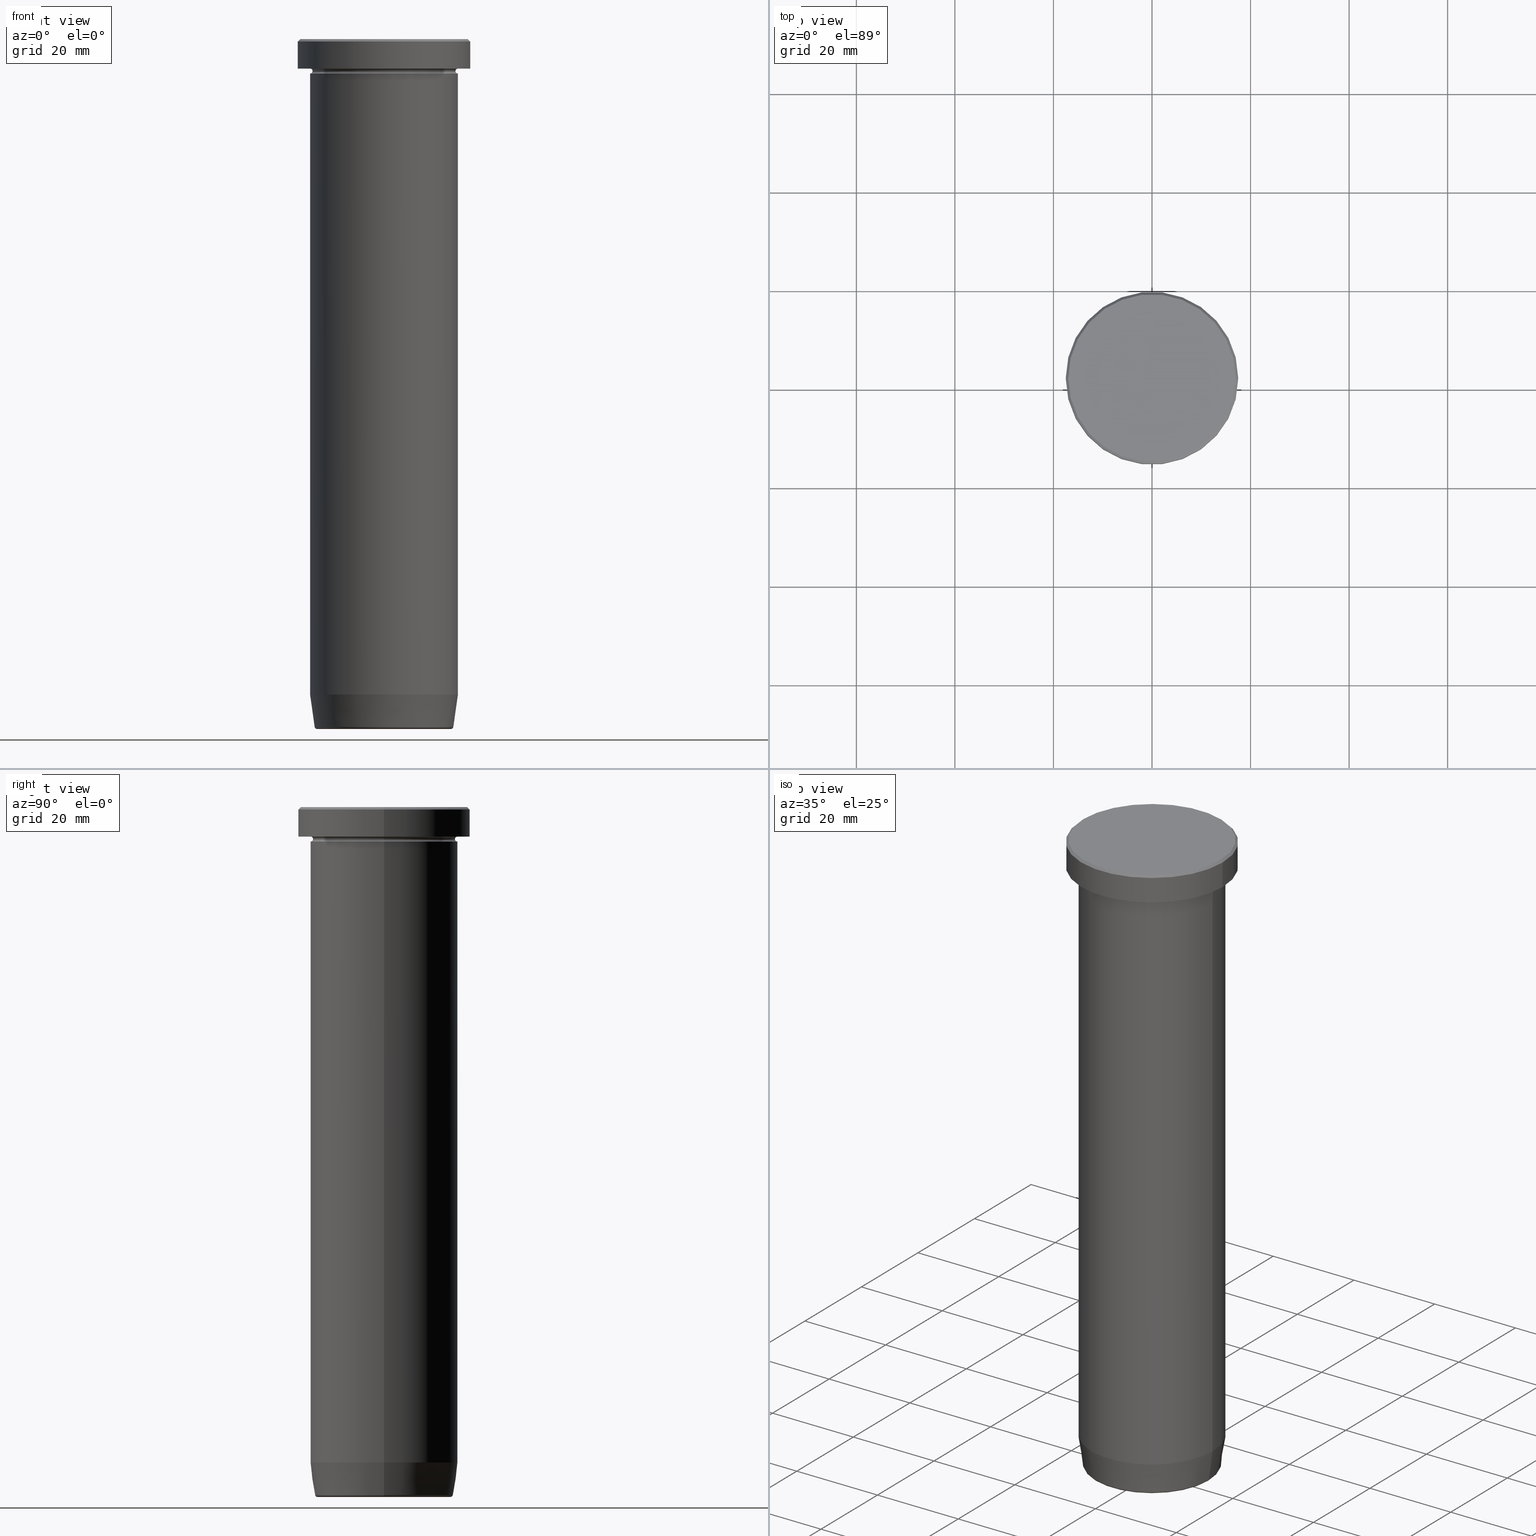
[diagram: canonical four-view strip — front | top / right | iso, engineering-drawing reading convention]
A machine part, canonical four-view strip (front | top / right | iso — engineering-drawing reading convention). The complete STEP part file that produces these views, byte-faithful:
ISO-10303-21;
HEADER;
FILE_DESCRIPTION (( 'STEP AP203' ),
    '1' );
FILE_NAME ('a6e9.STEP',
    '2024-01-02T17:50:50',
    ( '' ),
    ( '' ),
    'SwSTEP 2.0',
    'SolidWorks 2019',
    '' );
FILE_SCHEMA (( 'CONFIG_CONTROL_DESIGN' ));
ENDSEC;

DATA;
#1 = CARTESIAN_POINT ( 'NONE',  ( -15.00000000000000000, 1.836970198721029589E-15, -36.00000000000000000 ) ) ;
#2 =( LENGTH_UNIT ( ) NAMED_UNIT ( * ) SI_UNIT ( .MILLI., .METRE. ) );
#3 = ADVANCED_FACE ( 'NONE', ( #208 ), #386, .F. ) ;
#4 = DIRECTION ( 'NONE',  ( -1.000000000000000000, -1.224646799147349509E-16, 0.000000000000000000 ) ) ;
#5 = AXIS2_PLACEMENT_3D ( 'NONE', #526, #516, #239 ) ;
#6 = DIRECTION ( 'NONE',  ( 0.000000000000000000, 0.000000000000000000, -1.000000000000000000 ) ) ;
#7 = DIRECTION ( 'NONE',  ( 1.000000000000000000, 0.000000000000000000, 0.000000000000000000 ) ) ;
#8 = CYLINDRICAL_SURFACE ( 'NONE', #301, 17.50000000000000000 ) ;
#9 = ADVANCED_FACE ( 'NONE', ( #390 ), #397, .F. ) ;
#10 = VERTEX_POINT ( 'NONE', #346 ) ;
#11 = ORGANIZATION ( 'NEUR�EN�', 'NEUR�EN�', '' ) ;
#12 = DIRECTION ( 'NONE',  ( 1.000000000000000000, 0.000000000000000000, 0.000000000000000000 ) ) ;
#13 = AXIS2_PLACEMENT_3D ( 'NONE', #485, #22, #215 ) ;
#14 = ORIENTED_EDGE ( 'NONE', *, *, #358, .F. ) ;
#15 = VERTEX_POINT ( 'NONE', #442 ) ;
#16 = DIRECTION ( 'NONE',  ( 1.000000000000000000, 0.000000000000000000, 0.000000000000000000 ) ) ;
#17 = ORIENTED_EDGE ( 'NONE', *, *, #353, .T. ) ;
#18 = ADVANCED_FACE ( 'NONE', ( #73 ), #162, .F. ) ;
#19 = CARTESIAN_POINT ( 'NONE',  ( 0.000000000000000000, 0.000000000000000000, 0.000000000000000000 ) ) ;
#20 = DIRECTION ( 'NONE',  ( -0.000000000000000000, -0.000000000000000000, 1.000000000000000000 ) ) ;
#21 = APPROVAL_PERSON_ORGANIZATION ( #316, #325, #513 ) ;
#22 = DIRECTION ( 'NONE',  ( 0.000000000000000000, 0.000000000000000000, -1.000000000000000000 ) ) ;
#23 = AXIS2_PLACEMENT_3D ( 'NONE', #335, #247, #373 ) ;
#24 = VERTEX_POINT ( 'NONE', #542 ) ;
#25 = CARTESIAN_POINT ( 'NONE',  ( 0.000000000000000000, 0.000000000000000000, -132.9999999999999716 ) ) ;
#26 = AXIS2_PLACEMENT_3D ( 'NONE', #583, #97, #211 ) ;
#27 = ADVANCED_FACE ( 'NONE', ( #580 ), #141, .T. ) ;
#28 = EDGE_LOOP ( 'NONE', ( #537, #592, #438, #495 ) ) ;
#29 = DIRECTION ( 'NONE',  ( -0.000000000000000000, -0.000000000000000000, 1.000000000000000000 ) ) ;
#30 = ORIENTED_EDGE ( 'NONE', *, *, #203, .F. ) ;
#31 = CC_DESIGN_APPROVAL ( #161, ( #262 ) ) ;
#32 = CIRCLE ( 'NONE', #192, 15.00000000000000000 ) ;
#33 = COORDINATED_UNIVERSAL_TIME_OFFSET ( 1, 0, .AHEAD. ) ;
#34 = VERTEX_POINT ( 'NONE', #250 ) ;
#35 =( NAMED_UNIT ( * ) SI_UNIT ( $, .STERADIAN. ) SOLID_ANGLE_UNIT ( ) );
#36 = EDGE_CURVE ( 'NONE', #157, #403, #260, .T. ) ;
#37 = DIRECTION ( 'NONE',  ( 1.000000000000000000, 0.000000000000000000, 0.000000000000000000 ) ) ;
#38 = ORIENTED_EDGE ( 'NONE', *, *, #236, .T. ) ;
#39 = DATE_AND_TIME ( #360, #255 ) ;
#40 = FACE_OUTER_BOUND ( 'NONE', #202, .T. ) ;
#41 = CC_DESIGN_SECURITY_CLASSIFICATION ( #370, ( #509 ) ) ;
#42 = AXIS2_PLACEMENT_3D ( 'NONE', #249, #155, #195 ) ;
#43 = LOCAL_TIME ( 18, 50, 50.00000000000000000, #44 ) ;
#44 = COORDINATED_UNIVERSAL_TIME_OFFSET ( 1, 0, .AHEAD. ) ;
#45 = DIRECTION ( 'NONE',  ( -0.000000000000000000, -0.000000000000000000, 1.000000000000000000 ) ) ;
#46 = APPROVAL_ROLE ( '' ) ;
#47 = CARTESIAN_POINT ( 'NONE',  ( 0.000000000000000000, 0.000000000000000000, 0.000000000000000000 ) ) ;
#48 = CC_DESIGN_PERSON_AND_ORGANIZATION_ASSIGNMENT ( #510, #140, ( #262 ) ) ;
#49 = CYLINDRICAL_SURFACE ( 'NONE', #127, 15.00000000000000000 ) ;
#50 = ORIENTED_EDGE ( 'NONE', *, *, #371, .T. ) ;
#51 = CIRCLE ( 'NONE', #246, 15.00000000000000000 ) ;
#52 = DIRECTION ( 'NONE',  ( 0.000000000000000000, -1.000000000000000000, 0.000000000000000000 ) ) ;
#53 = DIRECTION ( 'NONE',  ( -0.000000000000000000, -0.000000000000000000, 1.000000000000000000 ) ) ;
#54 = DIRECTION ( 'NONE',  ( 1.000000000000000000, 0.000000000000000000, 0.000000000000000000 ) ) ;
#55 = ADVANCED_FACE ( 'NONE', ( #342 ), #503, .F. ) ;
#56 = DIRECTION ( 'NONE',  ( 1.000000000000000000, 0.000000000000000000, 0.000000000000000000 ) ) ;
#57 = ADVANCED_BREP_SHAPE_REPRESENTATION ( 'a6e9', ( #152, #543, #93 ), #181 ) ;
#58 = DIRECTION ( 'NONE',  ( 0.000000000000000000, 0.000000000000000000, -1.000000000000000000 ) ) ;
#59 = VECTOR ( 'NONE', #372, 1000.000000000000000 ) ;
#60 = EDGE_CURVE ( 'NONE', #67, #15, #364, .T. ) ;
#61 = ORIENTED_EDGE ( 'NONE', *, *, #515, .F. ) ;
#62 = DIRECTION ( 'NONE',  ( 1.000000000000000000, 0.000000000000000000, 0.000000000000000000 ) ) ;
#63 = ORIENTED_EDGE ( 'NONE', *, *, #420, .T. ) ;
#64 = ORIENTED_EDGE ( 'NONE', *, *, #253, .F. ) ;
#65 = CARTESIAN_POINT ( 'NONE',  ( 0.000000000000000000, 0.000000000000000000, 0.000000000000000000 ) ) ;
#66 = CARTESIAN_POINT ( 'NONE',  ( 0.000000000000000000, 0.000000000000000000, -36.00000000000000000 ) ) ;
#67 = VERTEX_POINT ( 'NONE', #552 ) ;
#68 = FACE_OUTER_BOUND ( 'NONE', #207, .T. ) ;
#69 = EDGE_LOOP ( 'NONE', ( #546, #108, #298, #491 ) ) ;
#70 = AXIS2_PLACEMENT_3D ( 'NONE', #496, #77, #79 ) ;
#71 = CARTESIAN_POINT ( 'NONE',  ( 0.000000000000000000, 0.000000000000000000, -6.499999999999999112 ) ) ;
#72 = AXIS2_PLACEMENT_3D ( 'NONE', #545, #193, #554 ) ;
#73 = FACE_OUTER_BOUND ( 'NONE', #139, .T. ) ;
#74 = VECTOR ( 'NONE', #138, 1000.000000000000000 ) ;
#75 = TOROIDAL_SURFACE ( 'NONE', #379, 15.00000000000000000, 0.5000000000000000000 ) ;
#76 = EDGE_LOOP ( 'NONE', ( #344, #38 ) ) ;
#77 = DIRECTION ( 'NONE',  ( -0.000000000000000000, -0.000000000000000000, 1.000000000000000000 ) ) ;
#78 = LINE ( 'NONE', #259, #566 ) ;
#79 = DIRECTION ( 'NONE',  ( -1.000000000000000000, 0.000000000000000000, 0.000000000000000000 ) ) ;
#80 = ORIENTED_EDGE ( 'NONE', *, *, #578, .F. ) ;
#81 = AXIS2_PLACEMENT_3D ( 'NONE', #133, #308, #343 ) ;
#82 = AXIS2_PLACEMENT_3D ( 'NONE', #277, #470, #280 ) ;
#83 = EDGE_CURVE ( 'NONE', #34, #366, #493, .T. ) ;
#84 =( NAMED_UNIT ( * ) PLANE_ANGLE_UNIT ( ) SI_UNIT ( $, .RADIAN. ) );
#85 = DIRECTION ( 'NONE',  ( -0.000000000000000000, -0.000000000000000000, 1.000000000000000000 ) ) ;
#86 = ORIENTED_EDGE ( 'NONE', *, *, #596, .F. ) ;
#87 = APPLICATION_PROTOCOL_DEFINITION ( 'international standard', 'config_control_design', 1994, #511 ) ;
#88 = FACE_OUTER_BOUND ( 'NONE', #234, .T. ) ;
#89 = AXIS2_PLACEMENT_3D ( 'NONE', #432, #375, #54 ) ;
#90 = CYLINDRICAL_SURFACE ( 'NONE', #72, 15.00000000000000000 ) ;
#91 = APPROVAL_STATUS ( 'not_yet_approved' ) ;
#92 = CARTESIAN_POINT ( 'NONE',  ( 0.000000000000000000, 0.000000000000000000, 0.000000000000000000 ) ) ;
#93 = AXIS2_PLACEMENT_3D ( 'NONE', #144, #556, #100 ) ;
#94 = AXIS2_PLACEMENT_3D ( 'NONE', #160, #338, #116 ) ;
#95 = CARTESIAN_POINT ( 'NONE',  ( 0.000000000000000000, 0.000000000000000000, -6.499999999999999112 ) ) ;
#96 = DATE_TIME_ROLE ( 'classification_date' ) ;
#97 = DIRECTION ( 'NONE',  ( 0.000000000000000000, -0.000000000000000000, 1.000000000000000000 ) ) ;
#98 = DIRECTION ( 'NONE',  ( -0.000000000000000000, -0.000000000000000000, 1.000000000000000000 ) ) ;
#99 = ADVANCED_FACE ( 'NONE', ( #567 ), #241, .T. ) ;
#100 = DIRECTION ( 'NONE',  ( 1.000000000000000000, 0.000000000000000000, 0.000000000000000000 ) ) ;
#101 = CARTESIAN_POINT ( 'NONE',  ( 0.000000000000000000, 0.000000000000000000, 0.000000000000000000 ) ) ;
#102 = CARTESIAN_POINT ( 'NONE',  ( 15.00000000000000000, 0.000000000000000000, -6.499999999999999112 ) ) ;
#103 = ORIENTED_EDGE ( 'NONE', *, *, #134, .T. ) ;
#104 = CC_DESIGN_APPROVAL ( #220, ( #370 ) ) ;
#105 = ADVANCED_FACE ( 'NONE', ( #143 ), #90, .T. ) ;
#106 = AXIS2_PLACEMENT_3D ( 'NONE', #334, #523, #428 ) ;
#107 = DIRECTION ( 'NONE',  ( 0.1391731009600661317, 0.000000000000000000, 0.9902680687415702510 ) ) ;
#108 = ORIENTED_EDGE ( 'NONE', *, *, #253, .T. ) ;
#109 = FACE_OUTER_BOUND ( 'NONE', #129, .T. ) ;
#110 = CLOSED_SHELL ( 'NONE', ( #472, #55, #3, #154, #268, #185, #409, #145, #429, #243, #212, #456, #589 ) ) ;
#111 = ORIENTED_EDGE ( 'NONE', *, *, #452, .T. ) ;
#112 = ORIENTED_EDGE ( 'NONE', *, *, #384, .F. ) ;
#113 = DIRECTION ( 'NONE',  ( -1.000000000000000000, 1.224646799147349509E-16, 0.000000000000000000 ) ) ;
#114 = EDGE_CURVE ( 'NONE', #15, #572, #189, .T. ) ;
#115 = ORIENTED_EDGE ( 'NONE', *, *, #578, .T. ) ;
#116 = DIRECTION ( 'NONE',  ( 1.000000000000000000, 0.000000000000000000, 0.000000000000000000 ) ) ;
#117 = CIRCLE ( 'NONE', #106, 0.5000000000000004441 ) ;
#118 = PRODUCT_RELATED_PRODUCT_CATEGORY ( 'detail', '', ( #318 ) ) ;
#119 = ORIENTED_EDGE ( 'NONE', *, *, #339, .F. ) ;
#120 = DIRECTION ( 'NONE',  ( -0.000000000000000000, -0.000000000000000000, 1.000000000000000000 ) ) ;
#121 = EDGE_LOOP ( 'NONE', ( #50, #410 ) ) ;
#122 = DIRECTION ( 'NONE',  ( 0.000000000000000000, 0.000000000000000000, -1.000000000000000000 ) ) ;
#123 = DIRECTION ( 'NONE',  ( -0.000000000000000000, -0.000000000000000000, 1.000000000000000000 ) ) ;
#124 = ORIENTED_EDGE ( 'NONE', *, *, #296, .F. ) ;
#125 = ADVANCED_FACE ( 'NONE', ( #310 ), #558, .T. ) ;
#126 = FACE_OUTER_BOUND ( 'NONE', #395, .T. ) ;
#127 = AXIS2_PLACEMENT_3D ( 'NONE', #92, #467, #235 ) ;
#128 = AXIS2_PLACEMENT_3D ( 'NONE', #25, #120, #354 ) ;
#129 = EDGE_LOOP ( 'NONE', ( #256, #593, #422, #119 ) ) ;
#130 = DIRECTION ( 'NONE',  ( 0.000000000000000000, 0.000000000000000000, -1.000000000000000000 ) ) ;
#131 = EDGE_LOOP ( 'NONE', ( #522, #14 ) ) ;
#132 = ORIENTED_EDGE ( 'NONE', *, *, #36, .F. ) ;
#133 = CARTESIAN_POINT ( 'NONE',  ( 0.000000000000000000, 0.000000000000000000, -6.499999999999999112 ) ) ;
#134 = EDGE_CURVE ( 'NONE', #380, #245, #51, .T. ) ;
#135 = DIRECTION ( 'NONE',  ( -0.000000000000000000, -0.000000000000000000, 1.000000000000000000 ) ) ;
#136 = AXIS2_PLACEMENT_3D ( 'NONE', #444, #385, #7 ) ;
#137 = APPROVAL_STATUS ( 'not_yet_approved' ) ;
#138 = DIRECTION ( 'NONE',  ( 0.7071067811865426878, 8.659560562354874926E-17, -0.7071067811865524577 ) ) ;
#139 = EDGE_LOOP ( 'NONE', ( #103, #383 ) ) ;
#140 = PERSON_AND_ORGANIZATION_ROLE ( 'creator' ) ;
#141 = CONICAL_SURFACE ( 'NONE', #486, 14.01621415708325280, 0.1396263401595470577 ) ;
#142 = CARTESIAN_POINT ( 'NONE',  ( 0.000000000000000000, 0.000000000000000000, 0.000000000000000000 ) ) ;
#143 = FACE_OUTER_BOUND ( 'NONE', #286, .T. ) ;
#144 = CARTESIAN_POINT ( 'NONE',  ( 0.000000000000000000, 0.000000000000000000, 0.000000000000000000 ) ) ;
#145 = ADVANCED_FACE ( 'NONE', ( #40 ), #227, .T. ) ;
#146 = CARTESIAN_POINT ( 'NONE',  ( 0.000000000000000000, 0.000000000000000000, -36.00000000000000000 ) ) ;
#147 = AXIS2_PLACEMENT_3D ( 'NONE', #488, #217, #404 ) ;
#148 = CIRCLE ( 'NONE', #174, 0.5000000000000004441 ) ;
#149 = DIRECTION ( 'NONE',  ( 0.000000000000000000, 0.000000000000000000, -1.000000000000000000 ) ) ;
#150 = PERSON_AND_ORGANIZATION ( #276, #11 ) ;
#151 = CARTESIAN_POINT ( 'NONE',  ( 0.000000000000000000, 15.00000000000000000, -36.00000000000000000 ) ) ;
#152 = MANIFOLD_SOLID_BREP ( 'Zkosen�1', #110 ) ;
#153 = DIRECTION ( 'NONE',  ( -0.000000000000000000, -0.000000000000000000, 1.000000000000000000 ) ) ;
#154 = ADVANCED_FACE ( 'NONE', ( #499 ), #49, .T. ) ;
#155 = DIRECTION ( 'NONE',  ( 0.000000000000000000, -0.000000000000000000, 1.000000000000000000 ) ) ;
#156 = CC_DESIGN_DATE_AND_TIME_ASSIGNMENT ( #180, #417, ( #262 ) ) ;
#157 = VERTEX_POINT ( 'NONE', #320 ) ;
#158 = CARTESIAN_POINT ( 'NONE',  ( 15.00000000000000000, 0.000000000000000000, -6.999999999999999112 ) ) ;
#159 = CARTESIAN_POINT ( 'NONE',  ( -15.00000000000000000, 1.836970198721029589E-15, 0.000000000000000000 ) ) ;
#160 = CARTESIAN_POINT ( 'NONE',  ( 0.000000000000000000, 0.000000000000000000, -139.4999999999999716 ) ) ;
#161 = APPROVAL ( #137, 'NEUR�EN�' ) ;
#162 = PLANE ( 'NONE',  #401 ) ;
#163 = DIRECTION ( 'NONE',  ( 0.000000000000000000, 0.000000000000000000, -1.000000000000000000 ) ) ;
#164 = AXIS2_PLACEMENT_3D ( 'NONE', #361, #549, #365 ) ;
#165 = ORIENTED_EDGE ( 'NONE', *, *, #288, .T. ) ;
#166 = ORIENTED_EDGE ( 'NONE', *, *, #570, .T. ) ;
#167 = LINE ( 'NONE', #590, #555 ) ;
#168 = EDGE_CURVE ( 'NONE', #34, #157, #460, .T. ) ;
#169 = AXIS2_PLACEMENT_3D ( 'NONE', #445, #393, #399 ) ;
#170 = DIRECTION ( 'NONE',  ( 1.000000000000000000, 0.000000000000000000, 0.000000000000000000 ) ) ;
#171 = ORIENTED_EDGE ( 'NONE', *, *, #550, .F. ) ;
#172 = CIRCLE ( 'NONE', #283, 15.00000000000000000 ) ;
#173 = DIRECTION ( 'NONE',  ( -1.000000000000000000, 0.000000000000000000, -0.000000000000000000 ) ) ;
#174 = AXIS2_PLACEMENT_3D ( 'NONE', #102, #52, #58 ) ;
#175 = VERTEX_POINT ( 'NONE', #412 ) ;
#176 = DIRECTION ( 'NONE',  ( -0.000000000000000000, -0.000000000000000000, 1.000000000000000000 ) ) ;
#177 = EDGE_CURVE ( 'NONE', #572, #380, #423, .T. ) ;
#178 = EDGE_LOOP ( 'NONE', ( #30, #216, #453, #80 ) ) ;
#179 = VERTEX_POINT ( 'NONE', #508 ) ;
#180 = DATE_AND_TIME ( #411, #424 ) ;
#181 =( GEOMETRIC_REPRESENTATION_CONTEXT ( 3 ) GLOBAL_UNCERTAINTY_ASSIGNED_CONTEXT ( ( #327 ) ) GLOBAL_UNIT_ASSIGNED_CONTEXT ( ( #2, #84, #35 ) ) REPRESENTATION_CONTEXT ( 'NONE', 'WORKASPACE' ) );
#182 = CARTESIAN_POINT ( 'NONE',  ( 0.000000000000000000, 0.000000000000000000, -6.499999999999999112 ) ) ;
#183 = CIRCLE ( 'NONE', #5, 0.5000000000000004441 ) ;
#184 = CARTESIAN_POINT ( 'NONE',  ( -15.00000000000000000, 1.836970198721029589E-15, -36.00000000000000000 ) ) ;
#185 = ADVANCED_FACE ( 'NONE', ( #514 ), #323, .T. ) ;
#186 = CALENDAR_DATE ( 2024, 2, 1 ) ;
#187 = CARTESIAN_POINT ( 'NONE',  ( -14.01621415708325280, 1.716491180363582438E-15, -139.9999999999999716 ) ) ;
#188 = CARTESIAN_POINT ( 'NONE',  ( -15.00000000000000000, 1.836970198721029589E-15, -6.999999999999999112 ) ) ;
#189 = CIRCLE ( 'NONE', #82, 15.00000000000000000 ) ;
#190 = MECHANICAL_CONTEXT ( 'NONE', #478, 'mechanical' ) ;
#191 = FACE_OUTER_BOUND ( 'NONE', #586, .T. ) ;
#192 = AXIS2_PLACEMENT_3D ( 'NONE', #529, #29, #534 ) ;
#193 = DIRECTION ( 'NONE',  ( -0.000000000000000000, -0.000000000000000000, 1.000000000000000000 ) ) ;
#194 = EDGE_CURVE ( 'NONE', #359, #497, #331, .T. ) ;
#195 = DIRECTION ( 'NONE',  ( 1.000000000000000000, 0.000000000000000000, 0.000000000000000000 ) ) ;
#196 = ORIENTED_EDGE ( 'NONE', *, *, #507, .T. ) ;
#197 = DIRECTION ( 'NONE',  ( -0.000000000000000000, -0.000000000000000000, 1.000000000000000000 ) ) ;
#198 = CONICAL_SURFACE ( 'NONE', #303, 17.00000000000000000, 0.7853981633974415066 ) ;
#199 = CIRCLE ( 'NONE', #597, 0.5000000000000004441 ) ;
#200 = CIRCLE ( 'NONE', #70, 14.07670482254592592 ) ;
#201 = CARTESIAN_POINT ( 'NONE',  ( -17.50000000000000000, 2.143131898507868248E-15, -0.5000000000000073275 ) ) ;
#202 = EDGE_LOOP ( 'NONE', ( #61, #431, #252, #461 ) ) ;
#203 = EDGE_CURVE ( 'NONE', #497, #175, #427, .T. ) ;
#204 = DIRECTION ( 'NONE',  ( -1.000000000000000000, 0.000000000000000000, 0.000000000000000000 ) ) ;
#205 = DIRECTION ( 'NONE',  ( -0.000000000000000000, -0.000000000000000000, 1.000000000000000000 ) ) ;
#206 = DIRECTION ( 'NONE',  ( 1.000000000000000000, 0.000000000000000000, 0.000000000000000000 ) ) ;
#207 = EDGE_LOOP ( 'NONE', ( #86, #471, #112, #563 ) ) ;
#208 = FACE_OUTER_BOUND ( 'NONE', #69, .T. ) ;
#209 = FACE_OUTER_BOUND ( 'NONE', #178, .T. ) ;
#210 = CIRCLE ( 'NONE', #415, 0.5000000000000004441 ) ;
#211 = DIRECTION ( 'NONE',  ( 1.000000000000000000, 0.000000000000000000, 0.000000000000000000 ) ) ;
#212 = ADVANCED_FACE ( 'NONE', ( #191 ), #437, .F. ) ;
#213 = CARTESIAN_POINT ( 'NONE',  ( 0.000000000000000000, 0.000000000000000000, -6.499999999999999112 ) ) ;
#214 = CARTESIAN_POINT ( 'NONE',  ( 0.000000000000000000, 0.000000000000000000, -5.999999999999999112 ) ) ;
#215 = DIRECTION ( 'NONE',  ( -1.000000000000000000, 0.000000000000000000, 0.000000000000000000 ) ) ;
#216 = ORIENTED_EDGE ( 'NONE', *, *, #541, .T. ) ;
#217 = DIRECTION ( 'NONE',  ( -0.000000000000000000, -0.000000000000000000, 1.000000000000000000 ) ) ;
#218 = VERTEX_POINT ( 'NONE', #184 ) ;
#219 = CIRCLE ( 'NONE', #311, 14.07670482254592592 ) ;
#220 = APPROVAL ( #322, 'NEUR�EN�' ) ;
#221 = APPLICATION_PROTOCOL_DEFINITION ( 'international standard', 'config_control_design', 1994, #478 ) ;
#222 = ORIENTED_EDGE ( 'NONE', *, *, #312, .F. ) ;
#223 = ORIENTED_EDGE ( 'NONE', *, *, #60, .T. ) ;
#224 = DATE_AND_TIME ( #319, #448 ) ;
#225 = CARTESIAN_POINT ( 'NONE',  ( 17.50000000000000000, 0.000000000000000000, 0.000000000000000000 ) ) ;
#226 = CC_DESIGN_APPROVAL ( #325, ( #509 ) ) ;
#227 = CYLINDRICAL_SURFACE ( 'NONE', #321, 17.50000000000000000 ) ;
#228 = CIRCLE ( 'NONE', #480, 17.50000000000000000 ) ;
#229 = EDGE_CURVE ( 'NONE', #10, #157, #237, .T. ) ;
#230 = APPROVAL_PERSON_ORGANIZATION ( #506, #161, #46 ) ;
#231 = DIRECTION ( 'NONE',  ( -1.000000000000000000, 0.000000000000000000, 0.000000000000000000 ) ) ;
#232 = DIRECTION ( 'NONE',  ( 1.000000000000000000, 0.000000000000000000, 0.000000000000000000 ) ) ;
#233 = PERSON_AND_ORGANIZATION ( #276, #11 ) ;
#234 = EDGE_LOOP ( 'NONE', ( #387, #290, #405, #349 ) ) ;
#235 = DIRECTION ( 'NONE',  ( 1.000000000000000000, 0.000000000000000000, 0.000000000000000000 ) ) ;
#236 = EDGE_CURVE ( 'NONE', #350, #305, #238, .T. ) ;
#237 = LINE ( 'NONE', #425, #74 ) ;
#238 = CIRCLE ( 'NONE', #352, 13.58157078817513863 ) ;
#239 = DIRECTION ( 'NONE',  ( 0.000000000000000000, 0.000000000000000000, -1.000000000000000000 ) ) ;
#240 = CARTESIAN_POINT ( 'NONE',  ( 0.000000000000000000, 0.000000000000000000, -36.00000000000000000 ) ) ;
#241 = TOROIDAL_SURFACE ( 'NONE', #585, 13.58157078817513863, 0.5000000000000000000 ) ;
#242 = DIRECTION ( 'NONE',  ( 0.000000000000000000, 0.000000000000000000, -1.000000000000000000 ) ) ;
#243 = ADVANCED_FACE ( 'NONE', ( #88 ), #462, .T. ) ;
#244 = ORIENTED_EDGE ( 'NONE', *, *, #114, .F. ) ;
#245 = VERTEX_POINT ( 'NONE', #1 ) ;
#246 = AXIS2_PLACEMENT_3D ( 'NONE', #146, #269, #266 ) ;
#247 = DIRECTION ( 'NONE',  ( -0.000000000000000000, -0.000000000000000000, 1.000000000000000000 ) ) ;
#248 = ORIENTED_EDGE ( 'NONE', *, *, #229, .F. ) ;
#249 = CARTESIAN_POINT ( 'NONE',  ( 0.000000000000000000, 0.000000000000000000, 0.000000000000000000 ) ) ;
#250 = CARTESIAN_POINT ( 'NONE',  ( 17.50000000000000000, 0.000000000000000000, -5.999999999999999112 ) ) ;
#251 = VERTEX_POINT ( 'NONE', #188 ) ;
#252 = ORIENTED_EDGE ( 'NONE', *, *, #168, .T. ) ;
#253 = EDGE_CURVE ( 'NONE', #359, #251, #210, .T. ) ;
#254 = DIRECTION ( 'NONE',  ( -1.000000000000000000, 0.000000000000000000, 0.000000000000000000 ) ) ;
#255 = LOCAL_TIME ( 18, 50, 50.00000000000000000, #313 ) ;
#256 = ORIENTED_EDGE ( 'NONE', *, *, #236, .F. ) ;
#257 = DIRECTION ( 'NONE',  ( -0.000000000000000000, -0.000000000000000000, 1.000000000000000000 ) ) ;
#258 = DIRECTION ( 'NONE',  ( -0.000000000000000000, -0.000000000000000000, 1.000000000000000000 ) ) ;
#259 = CARTESIAN_POINT ( 'NONE',  ( -17.00000000000000000, 0.000000000000000000, 0.000000000000000000 ) ) ;
#260 = CIRCLE ( 'NONE', #169, 17.50000000000000000 ) ;
#261 = FACE_OUTER_BOUND ( 'NONE', #574, .T. ) ;
#262 = PRODUCT_DEFINITION ( 'NEZN�M�', '', #509, #275 ) ;
#263 = AXIS2_PLACEMENT_3D ( 'NONE', #587, #258, #170 ) ;
#264 = CARTESIAN_POINT ( 'NONE',  ( 0.000000000000000000, 0.000000000000000000, -36.00000000000000000 ) ) ;
#265 = AXIS2_PLACEMENT_3D ( 'NONE', #101, #85, #37 ) ;
#266 = DIRECTION ( 'NONE',  ( 1.000000000000000000, 0.000000000000000000, 0.000000000000000000 ) ) ;
#267 = COORDINATED_UNIVERSAL_TIME_OFFSET ( 1, 0, .AHEAD. ) ;
#268 = ADVANCED_FACE ( 'NONE', ( #473 ), #8, .T. ) ;
#269 = DIRECTION ( 'NONE',  ( -0.000000000000000000, -0.000000000000000000, 1.000000000000000000 ) ) ;
#270 = VERTEX_POINT ( 'NONE', #158 ) ;
#271 = PERSON_AND_ORGANIZATION ( #276, #11 ) ;
#272 = DIRECTION ( 'NONE',  ( -1.224646799147353207E-16, 1.000000000000000000, 0.000000000000000000 ) ) ;
#273 = CONICAL_SURFACE ( 'NONE', #13, 17.00000000000000000, 0.7853981633974415066 ) ;
#274 = APPROVAL_DATE_TIME ( #224, #161 ) ;
#275 = DESIGN_CONTEXT ( 'detailed design', #511, 'design' ) ;
#276 = PERSON ( 'NEUR�EN�', 'NEUR�EN�', 'NEUR�EN�', ('NEUR�EN�'), ('NEUR�EN�'), ('NEUR�EN�') ) ;
#277 = CARTESIAN_POINT ( 'NONE',  ( 0.000000000000000000, 0.000000000000000000, -132.9999999999999716 ) ) ;
#278 = EDGE_CURVE ( 'NONE', #245, #380, #547, .T. ) ;
#279 = PERSON_AND_ORGANIZATION_ROLE ( 'design_supplier' ) ;
#280 = DIRECTION ( 'NONE',  ( 1.000000000000000000, 0.000000000000000000, 0.000000000000000000 ) ) ;
#281 = SHAPE_DEFINITION_REPRESENTATION ( #329, #57 ) ;
#282 = LINE ( 'NONE', #159, #294 ) ;
#283 = AXIS2_PLACEMENT_3D ( 'NONE', #451, #355, #302 ) ;
#284 = CIRCLE ( 'NONE', #23, 15.00000000000000000 ) ;
#285 = CARTESIAN_POINT ( 'NONE',  ( -14.49999999999999822, 1.806354028742345802E-15, -6.499999999999999112 ) ) ;
#286 = EDGE_LOOP ( 'NONE', ( #396, #447, #504, #414 ) ) ;
#287 = CARTESIAN_POINT ( 'NONE',  ( 15.00000000000000000, 0.000000000000000000, -36.00000000000000000 ) ) ;
#288 = EDGE_CURVE ( 'NONE', #497, #270, #148, .T. ) ;
#289 = ORIENTED_EDGE ( 'NONE', *, *, #524, .F. ) ;
#290 = ORIENTED_EDGE ( 'NONE', *, *, #296, .T. ) ;
#291 = EDGE_LOOP ( 'NONE', ( #520, #63, #576, #484 ) ) ;
#292 = DIRECTION ( 'NONE',  ( 1.000000000000000000, 0.000000000000000000, 0.000000000000000000 ) ) ;
#293 = AXIS2_PLACEMENT_3D ( 'NONE', #264, #458, #348 ) ;
#294 = VECTOR ( 'NONE', #153, 1000.000000000000000 ) ;
#295 = CARTESIAN_POINT ( 'NONE',  ( 0.000000000000000000, 0.000000000000000000, -0.5000000000000073275 ) ) ;
#296 = EDGE_CURVE ( 'NONE', #218, #539, #284, .T. ) ;
#297 = CARTESIAN_POINT ( 'NONE',  ( 15.00000000000000000, 0.000000000000000000, -132.9999999999999716 ) ) ;
#298 = ORIENTED_EDGE ( 'NONE', *, *, #468, .T. ) ;
#299 = DIRECTION ( 'NONE',  ( -0.000000000000000000, -0.000000000000000000, 1.000000000000000000 ) ) ;
#300 = CIRCLE ( 'NONE', #128, 15.00000000000000000 ) ;
#301 = AXIS2_PLACEMENT_3D ( 'NONE', #65, #53, #292 ) ;
#302 = DIRECTION ( 'NONE',  ( -1.000000000000000000, 0.000000000000000000, 0.000000000000000000 ) ) ;
#303 = AXIS2_PLACEMENT_3D ( 'NONE', #388, #163, #254 ) ;
#304 = LINE ( 'NONE', #577, #536 ) ;
#305 = VERTEX_POINT ( 'NONE', #430 ) ;
#306 = ORIENTED_EDGE ( 'NONE', *, *, #203, .T. ) ;
#307 = EDGE_CURVE ( 'NONE', #305, #350, #362, .T. ) ;
#308 = DIRECTION ( 'NONE',  ( -0.000000000000000000, -0.000000000000000000, 1.000000000000000000 ) ) ;
#309 = CARTESIAN_POINT ( 'NONE',  ( 0.000000000000000000, 0.000000000000000000, -139.4999999999999716 ) ) ;
#310 = FACE_OUTER_BOUND ( 'NONE', #291, .T. ) ;
#311 = AXIS2_PLACEMENT_3D ( 'NONE', #440, #197, #204 ) ;
#312 = EDGE_CURVE ( 'NONE', #350, #67, #117, .T. ) ;
#313 = COORDINATED_UNIVERSAL_TIME_OFFSET ( 1, 0, .AHEAD. ) ;
#314 = CARTESIAN_POINT ( 'NONE',  ( 0.000000000000000000, 0.000000000000000000, -139.9999999999999716 ) ) ;
#315 = CC_DESIGN_DATE_AND_TIME_ASSIGNMENT ( #369, #96, ( #370 ) ) ;
#316 = PERSON_AND_ORGANIZATION ( #276, #11 ) ;
#317 = CARTESIAN_POINT ( 'NONE',  ( 15.00000000000000000, 0.000000000000000000, 0.000000000000000000 ) ) ;
#318 = PRODUCT ( 'a6e9', 'a6e9', '', ( #190 ) ) ;
#319 = CALENDAR_DATE ( 2024, 2, 1 ) ;
#320 = CARTESIAN_POINT ( 'NONE',  ( 17.50000000000000000, 0.000000000000000000, -0.5000000000000073275 ) ) ;
#321 = AXIS2_PLACEMENT_3D ( 'NONE', #47, #135, #416 ) ;
#322 = APPROVAL_STATUS ( 'not_yet_approved' ) ;
#323 = PLANE ( 'NONE',  #557 ) ;
#324 = ORIENTED_EDGE ( 'NONE', *, *, #487, .F. ) ;
#325 = APPROVAL ( #91, 'NEUR�EN�' ) ;
#326 = AXIS2_PLACEMENT_3D ( 'NONE', #213, #20, #206 ) ;
#327 = UNCERTAINTY_MEASURE_WITH_UNIT (LENGTH_MEASURE( 1.000000000000000082E-05 ), #2, 'distance_accuracy_value', 'NONE');
#328 = LINE ( 'NONE', #377, #588 ) ;
#329 = PRODUCT_DEFINITION_SHAPE ( 'NONE', 'NONE',  #262 ) ;
#330 = CARTESIAN_POINT ( 'NONE',  ( 0.000000000000000000, 0.000000000000000000, -139.9999999999999716 ) ) ;
#331 = CIRCLE ( 'NONE', #449, 14.49999999999999822 ) ;
#332 = AXIS2_PLACEMENT_3D ( 'NONE', #538, #407, #173 ) ;
#333 = EDGE_CURVE ( 'NONE', #24, #67, #219, .T. ) ;
#334 = CARTESIAN_POINT ( 'NONE',  ( -13.58157078817513863, 1.663262719313187755E-15, -139.4999999999999716 ) ) ;
#335 = CARTESIAN_POINT ( 'NONE',  ( 0.000000000000000000, 0.000000000000000000, -36.00000000000000000 ) ) ;
#336 = AXIS2_PLACEMENT_3D ( 'NONE', #95, #149, #231 ) ;
#337 = ORIENTED_EDGE ( 'NONE', *, *, #524, .T. ) ;
#338 = DIRECTION ( 'NONE',  ( -0.000000000000000000, -0.000000000000000000, 1.000000000000000000 ) ) ;
#339 = EDGE_CURVE ( 'NONE', #305, #24, #183, .T. ) ;
#340 = CIRCLE ( 'NONE', #147, 15.00000000000000000 ) ;
#341 = EDGE_LOOP ( 'NONE', ( #573, #306, #289, #525 ) ) ;
#342 = FACE_OUTER_BOUND ( 'NONE', #341, .T. ) ;
#343 = DIRECTION ( 'NONE',  ( 1.000000000000000000, 0.000000000000000000, 0.000000000000000000 ) ) ;
#344 = ORIENTED_EDGE ( 'NONE', *, *, #307, .T. ) ;
#345 = LINE ( 'NONE', #490, #564 ) ;
#346 = CARTESIAN_POINT ( 'NONE',  ( 17.00000000000000000, 2.112515728529184067E-15, 0.000000000000000000 ) ) ;
#347 = VECTOR ( 'NONE', #367, 1000.000000000000000 ) ;
#348 = DIRECTION ( 'NONE',  ( 1.000000000000000000, 0.000000000000000000, 0.000000000000000000 ) ) ;
#349 = ORIENTED_EDGE ( 'NONE', *, *, #468, .F. ) ;
#350 = VERTEX_POINT ( 'NONE', #476 ) ;
#351 = CIRCLE ( 'NONE', #81, 14.49999999999999822 ) ;
#352 = AXIS2_PLACEMENT_3D ( 'NONE', #314, #6, #502 ) ;
#353 = EDGE_CURVE ( 'NONE', #24, #572, #328, .T. ) ;
#354 = DIRECTION ( 'NONE',  ( 1.000000000000000000, 0.000000000000000000, 0.000000000000000000 ) ) ;
#355 = DIRECTION ( 'NONE',  ( -0.000000000000000000, -0.000000000000000000, 1.000000000000000000 ) ) ;
#356 = EDGE_LOOP ( 'NONE', ( #569, #223, #171, #391 ) ) ;
#357 = CALENDAR_DATE ( 2024, 2, 1 ) ;
#358 = EDGE_CURVE ( 'NONE', #366, #34, #392, .T. ) ;
#359 = VERTEX_POINT ( 'NONE', #285 ) ;
#360 = CALENDAR_DATE ( 2024, 2, 1 ) ;
#361 = CARTESIAN_POINT ( 'NONE',  ( 0.000000000000000000, 0.000000000000000000, -6.499999999999999112 ) ) ;
#362 = CIRCLE ( 'NONE', #579, 13.58157078817513863 ) ;
#363 = PERSON_AND_ORGANIZATION ( #276, #11 ) ;
#364 = LINE ( 'NONE', #187, #347 ) ;
#365 = DIRECTION ( 'NONE',  ( 1.000000000000000000, 0.000000000000000000, 0.000000000000000000 ) ) ;
#366 = VERTEX_POINT ( 'NONE', #575 ) ;
#367 = DIRECTION ( 'NONE',  ( -0.1391731009600661317, 1.704378926181564302E-17, 0.9902680687415702510 ) ) ;
#368 = CARTESIAN_POINT ( 'NONE',  ( -15.00000000000000000, 1.836970198721029589E-15, -6.499999999999999112 ) ) ;
#369 = DATE_AND_TIME ( #186, #43 ) ;
#370 = SECURITY_CLASSIFICATION ( '', '', #551 ) ;
#371 = EDGE_CURVE ( 'NONE', #179, #10, #519, .T. ) ;
#372 = DIRECTION ( 'NONE',  ( -0.000000000000000000, -0.000000000000000000, 1.000000000000000000 ) ) ;
#373 = DIRECTION ( 'NONE',  ( 1.000000000000000000, 0.000000000000000000, 0.000000000000000000 ) ) ;
#374 = FACE_BOUND ( 'NONE', #443, .T. ) ;
#375 = DIRECTION ( 'NONE',  ( -0.000000000000000000, -0.000000000000000000, 1.000000000000000000 ) ) ;
#376 = ADVANCED_FACE ( 'NONE', ( #109 ), #406, .T. ) ;
#377 = CARTESIAN_POINT ( 'NONE',  ( 14.01621415708325280, 0.000000000000000000, -139.9999999999999716 ) ) ;
#378 = APPROVAL_PERSON_ORGANIZATION ( #233, #220, #421 ) ;
#379 = AXIS2_PLACEMENT_3D ( 'NONE', #71, #130, #455 ) ;
#380 = VERTEX_POINT ( 'NONE', #287 ) ;
#381 = DATE_AND_TIME ( #357, #535 ) ;
#382 = FACE_OUTER_BOUND ( 'NONE', #121, .T. ) ;
#383 = ORIENTED_EDGE ( 'NONE', *, *, #278, .T. ) ;
#384 = EDGE_CURVE ( 'NONE', #403, #157, #228, .T. ) ;
#385 = DIRECTION ( 'NONE',  ( -0.000000000000000000, -0.000000000000000000, 1.000000000000000000 ) ) ;
#386 = TOROIDAL_SURFACE ( 'NONE', #326, 15.00000000000000000, 0.5000000000000000000 ) ;
#387 = ORIENTED_EDGE ( 'NONE', *, *, #530, .F. ) ;
#388 = CARTESIAN_POINT ( 'NONE',  ( 0.000000000000000000, 0.000000000000000000, 0.000000000000000000 ) ) ;
#389 = EDGE_LOOP ( 'NONE', ( #166, #426, #531, #324 ) ) ;
#390 = FACE_OUTER_BOUND ( 'NONE', #76, .T. ) ;
#391 = ORIENTED_EDGE ( 'NONE', *, *, #353, .F. ) ;
#392 = CIRCLE ( 'NONE', #136, 17.50000000000000000 ) ;
#393 = DIRECTION ( 'NONE',  ( 0.000000000000000000, 0.000000000000000000, -1.000000000000000000 ) ) ;
#394 = CARTESIAN_POINT ( 'NONE',  ( 14.49999999999999822, 0.000000000000000000, -6.499999999999999112 ) ) ;
#395 = EDGE_LOOP ( 'NONE', ( #248, #500, #111, #132 ) ) ;
#396 = ORIENTED_EDGE ( 'NONE', *, *, #420, .F. ) ;
#397 = PLANE ( 'NONE',  #26 ) ;
#398 = ORIENTED_EDGE ( 'NONE', *, *, #307, .F. ) ;
#399 = DIRECTION ( 'NONE',  ( 1.000000000000000000, 0.000000000000000000, 0.000000000000000000 ) ) ;
#400 = PLANE ( 'NONE',  #332 ) ;
#401 = AXIS2_PLACEMENT_3D ( 'NONE', #66, #122, #450 ) ;
#402 = EDGE_CURVE ( 'NONE', #359, #591, #199, .T. ) ;
#403 = VERTEX_POINT ( 'NONE', #201 ) ;
#404 = DIRECTION ( 'NONE',  ( 1.000000000000000000, 0.000000000000000000, 0.000000000000000000 ) ) ;
#405 = ORIENTED_EDGE ( 'NONE', *, *, #487, .T. ) ;
#406 = TOROIDAL_SURFACE ( 'NONE', #94, 13.58157078817513863, 0.5000000000000000000 ) ;
#407 = DIRECTION ( 'NONE',  ( 0.000000000000000000, 0.000000000000000000, -1.000000000000000000 ) ) ;
#408 = ORIENTED_EDGE ( 'NONE', *, *, #541, .F. ) ;
#409 = ADVANCED_FACE ( 'NONE', ( #382 ), #483, .T. ) ;
#410 = ORIENTED_EDGE ( 'NONE', *, *, #596, .T. ) ;
#411 = CALENDAR_DATE ( 2024, 2, 1 ) ;
#412 = CARTESIAN_POINT ( 'NONE',  ( 15.00000000000000000, 1.836970198721029589E-15, -5.999999999999998224 ) ) ;
#413 = CIRCLE ( 'NONE', #436, 17.00000000000000000 ) ;
#414 = ORIENTED_EDGE ( 'NONE', *, *, #278, .F. ) ;
#415 = AXIS2_PLACEMENT_3D ( 'NONE', #368, #565, #113 ) ;
#416 = DIRECTION ( 'NONE',  ( 1.000000000000000000, 0.000000000000000000, 0.000000000000000000 ) ) ;
#417 = DATE_TIME_ROLE ( 'creation_date' ) ;
#418 = DIRECTION ( 'NONE',  ( 1.000000000000000000, 0.000000000000000000, 0.000000000000000000 ) ) ;
#419 = CLOSED_SHELL ( 'NONE', ( #376, #27, #125, #18, #105, #494, #9, #99 ) ) ;
#420 = EDGE_CURVE ( 'NONE', #15, #245, #282, .T. ) ;
#421 = APPROVAL_ROLE ( '' ) ;
#422 = ORIENTED_EDGE ( 'NONE', *, *, #333, .F. ) ;
#423 = LINE ( 'NONE', #317, #474 ) ;
#424 = LOCAL_TIME ( 18, 50, 50.00000000000000000, #267 ) ;
#425 = CARTESIAN_POINT ( 'NONE',  ( 17.00000000000000000, 2.081899558550500280E-15, 0.000000000000000000 ) ) ;
#426 = ORIENTED_EDGE ( 'NONE', *, *, #530, .T. ) ;
#427 = CIRCLE ( 'NONE', #457, 0.5000000000000004441 ) ;
#428 = DIRECTION ( 'NONE',  ( -1.000000000000000000, 1.224646799147353454E-16, 0.000000000000000000 ) ) ;
#429 = ADVANCED_FACE ( 'NONE', ( #374, #584 ), #400, .T. ) ;
#430 = CARTESIAN_POINT ( 'NONE',  ( 13.58157078817513863, 0.000000000000000000, -139.9999999999999716 ) ) ;
#431 = ORIENTED_EDGE ( 'NONE', *, *, #358, .T. ) ;
#432 = CARTESIAN_POINT ( 'NONE',  ( 0.000000000000000000, 0.000000000000000000, -5.999999999999999112 ) ) ;
#433 = CC_DESIGN_PERSON_AND_ORGANIZATION_ASSIGNMENT ( #271, #465, ( #370 ) ) ;
#434 = EDGE_LOOP ( 'NONE', ( #222, #398, #441, #482 ) ) ;
#435 = DIRECTION ( 'NONE',  ( -0.000000000000000000, -0.000000000000000000, 1.000000000000000000 ) ) ;
#436 = AXIS2_PLACEMENT_3D ( 'NONE', #533, #299, #459 ) ;
#437 = TOROIDAL_SURFACE ( 'NONE', #164, 15.00000000000000000, 0.5000000000000000000 ) ;
#438 = ORIENTED_EDGE ( 'NONE', *, *, #384, .T. ) ;
#439 = APPROVAL_DATE_TIME ( #381, #220 ) ;
#440 = CARTESIAN_POINT ( 'NONE',  ( 0.000000000000000000, 0.000000000000000000, -139.5695865504800111 ) ) ;
#441 = ORIENTED_EDGE ( 'NONE', *, *, #339, .T. ) ;
#442 = CARTESIAN_POINT ( 'NONE',  ( -15.00000000000000000, 1.836970198721029589E-15, -132.9999999999999716 ) ) ;
#443 = EDGE_LOOP ( 'NONE', ( #337, #115 ) ) ;
#444 = CARTESIAN_POINT ( 'NONE',  ( 0.000000000000000000, 0.000000000000000000, -5.999999999999999112 ) ) ;
#445 = CARTESIAN_POINT ( 'NONE',  ( 0.000000000000000000, 0.000000000000000000, -0.5000000000000073275 ) ) ;
#446 = CARTESIAN_POINT ( 'NONE',  ( -15.00000000000000000, 0.000000000000000000, -5.999999999999998224 ) ) ;
#447 = ORIENTED_EDGE ( 'NONE', *, *, #114, .T. ) ;
#448 = LOCAL_TIME ( 18, 50, 50.00000000000000000, #501 ) ;
#449 = AXIS2_PLACEMENT_3D ( 'NONE', #182, #98, #232 ) ;
#450 = DIRECTION ( 'NONE',  ( -1.000000000000000000, 0.000000000000000000, -0.000000000000000000 ) ) ;
#451 = CARTESIAN_POINT ( 'NONE',  ( 0.000000000000000000, 0.000000000000000000, -5.999999999999999112 ) ) ;
#452 = EDGE_CURVE ( 'NONE', #179, #403, #78, .T. ) ;
#453 = ORIENTED_EDGE ( 'NONE', *, *, #402, .T. ) ;
#454 = DIRECTION ( 'NONE',  ( -0.7071067811865426878, 0.000000000000000000, -0.7071067811865524577 ) ) ;
#455 = DIRECTION ( 'NONE',  ( -1.000000000000000000, 0.000000000000000000, 0.000000000000000000 ) ) ;
#456 = ADVANCED_FACE ( 'NONE', ( #209 ), #75, .F. ) ;
#457 = AXIS2_PLACEMENT_3D ( 'NONE', #598, #272, #4 ) ;
#458 = DIRECTION ( 'NONE',  ( -0.000000000000000000, -0.000000000000000000, 1.000000000000000000 ) ) ;
#459 = DIRECTION ( 'NONE',  ( 1.000000000000000000, 0.000000000000000000, 0.000000000000000000 ) ) ;
#460 = LINE ( 'NONE', #225, #59 ) ;
#461 = ORIENTED_EDGE ( 'NONE', *, *, #36, .T. ) ;
#462 = CYLINDRICAL_SURFACE ( 'NONE', #466, 15.00000000000000000 ) ;
#463 = CIRCLE ( 'NONE', #293, 15.00000000000000000 ) ;
#464 = EDGE_LOOP ( 'NONE', ( #505, #124 ) ) ;
#465 = PERSON_AND_ORGANIZATION_ROLE ( 'classification_officer' ) ;
#466 = AXIS2_PLACEMENT_3D ( 'NONE', #142, #45, #418 ) ;
#467 = DIRECTION ( 'NONE',  ( -0.000000000000000000, -0.000000000000000000, 1.000000000000000000 ) ) ;
#468 = EDGE_CURVE ( 'NONE', #251, #270, #32, .T. ) ;
#469 = PERSON_AND_ORGANIZATION ( #276, #11 ) ;
#470 = DIRECTION ( 'NONE',  ( -0.000000000000000000, -0.000000000000000000, 1.000000000000000000 ) ) ;
#471 = ORIENTED_EDGE ( 'NONE', *, *, #229, .T. ) ;
#472 = ADVANCED_FACE ( 'NONE', ( #68 ), #273, .T. ) ;
#473 = FACE_OUTER_BOUND ( 'NONE', #28, .T. ) ;
#474 = VECTOR ( 'NONE', #553, 1000.000000000000000 ) ;
#475 = ORIENTED_EDGE ( 'NONE', *, *, #559, .T. ) ;
#476 = CARTESIAN_POINT ( 'NONE',  ( -13.58157078817513863, 1.693580934830242684E-15, -139.9999999999999716 ) ) ;
#477 = ORIENTED_EDGE ( 'NONE', *, *, #60, .F. ) ;
#478 = APPLICATION_CONTEXT ( 'configuration controlled 3d designs of mechanical parts and assemblies' ) ;
#479 = DIRECTION ( 'NONE',  ( -0.000000000000000000, -0.000000000000000000, 1.000000000000000000 ) ) ;
#480 = AXIS2_PLACEMENT_3D ( 'NONE', #295, #242, #12 ) ;
#481 = CC_DESIGN_PERSON_AND_ORGANIZATION_ASSIGNMENT ( #363, #498, ( #318 ) ) ;
#482 = ORIENTED_EDGE ( 'NONE', *, *, #559, .F. ) ;
#483 = PLANE ( 'NONE',  #42 ) ;
#484 = ORIENTED_EDGE ( 'NONE', *, *, #177, .F. ) ;
#485 = CARTESIAN_POINT ( 'NONE',  ( 0.000000000000000000, 0.000000000000000000, 0.000000000000000000 ) ) ;
#486 = AXIS2_PLACEMENT_3D ( 'NONE', #532, #257, #62 ) ;
#487 = EDGE_CURVE ( 'NONE', #539, #270, #304, .T. ) ;
#488 = CARTESIAN_POINT ( 'NONE',  ( 0.000000000000000000, 0.000000000000000000, -6.999999999999999112 ) ) ;
#489 = AXIS2_PLACEMENT_3D ( 'NONE', #240, #479, #16 ) ;
#490 = CARTESIAN_POINT ( 'NONE',  ( -15.00000000000000000, 1.836970198721029589E-15, 0.000000000000000000 ) ) ;
#491 = ORIENTED_EDGE ( 'NONE', *, *, #288, .F. ) ;
#492 = DIRECTION ( 'NONE',  ( -0.000000000000000000, -0.000000000000000000, 1.000000000000000000 ) ) ;
#493 = CIRCLE ( 'NONE', #89, 17.50000000000000000 ) ;
#494 = ADVANCED_FACE ( 'NONE', ( #261 ), #595, .T. ) ;
#495 = ORIENTED_EDGE ( 'NONE', *, *, #168, .F. ) ;
#496 = CARTESIAN_POINT ( 'NONE',  ( 0.000000000000000000, 0.000000000000000000, -139.5695865504800111 ) ) ;
#497 = VERTEX_POINT ( 'NONE', #394 ) ;
#498 = PERSON_AND_ORGANIZATION_ROLE ( 'design_owner' ) ;
#499 = FACE_OUTER_BOUND ( 'NONE', #389, .T. ) ;
#500 = ORIENTED_EDGE ( 'NONE', *, *, #371, .F. ) ;
#501 = COORDINATED_UNIVERSAL_TIME_OFFSET ( 1, 0, .AHEAD. ) ;
#502 = DIRECTION ( 'NONE',  ( 1.000000000000000000, 0.000000000000000000, 0.000000000000000000 ) ) ;
#503 = TOROIDAL_SURFACE ( 'NONE', #336, 15.00000000000000000, 0.5000000000000000000 ) ;
#504 = ORIENTED_EDGE ( 'NONE', *, *, #177, .T. ) ;
#505 = ORIENTED_EDGE ( 'NONE', *, *, #570, .F. ) ;
#506 = PERSON_AND_ORGANIZATION ( #276, #11 ) ;
#507 = EDGE_CURVE ( 'NONE', #270, #251, #340, .T. ) ;
#508 = CARTESIAN_POINT ( 'NONE',  ( -17.00000000000000000, 0.000000000000000000, 0.000000000000000000 ) ) ;
#509 = PRODUCT_DEFINITION_FORMATION_WITH_SPECIFIED_SOURCE ( 'LIBOVOLN�', '', #318, .NOT_KNOWN. ) ;
#510 = PERSON_AND_ORGANIZATION ( #276, #11 ) ;
#511 = APPLICATION_CONTEXT ( 'configuration controlled 3d designs of mechanical parts and assemblies' ) ;
#512 = DIRECTION ( 'NONE',  ( -1.000000000000000000, 0.000000000000000000, -0.000000000000000000 ) ) ;
#513 = APPROVAL_ROLE ( '' ) ;
#514 = FACE_OUTER_BOUND ( 'NONE', #464, .T. ) ;
#515 = EDGE_CURVE ( 'NONE', #366, #403, #167, .T. ) ;
#516 = DIRECTION ( 'NONE',  ( 0.000000000000000000, -1.000000000000000000, 0.000000000000000000 ) ) ;
#517 = CIRCLE ( 'NONE', #568, 15.00000000000000000 ) ;
#518 = DIRECTION ( 'NONE',  ( 0.000000000000000000, 0.000000000000000000, -1.000000000000000000 ) ) ;
#519 = CIRCLE ( 'NONE', #527, 17.00000000000000000 ) ;
#520 = ORIENTED_EDGE ( 'NONE', *, *, #550, .T. ) ;
#521 = DIRECTION ( 'NONE',  ( 1.000000000000000000, 0.000000000000000000, 0.000000000000000000 ) ) ;
#522 = ORIENTED_EDGE ( 'NONE', *, *, #83, .F. ) ;
#523 = DIRECTION ( 'NONE',  ( 1.224646799147353207E-16, 1.000000000000000000, 0.000000000000000000 ) ) ;
#524 = EDGE_CURVE ( 'NONE', #591, #175, #172, .T. ) ;
#525 = ORIENTED_EDGE ( 'NONE', *, *, #402, .F. ) ;
#526 = CARTESIAN_POINT ( 'NONE',  ( 13.58157078817513863, 0.000000000000000000, -139.4999999999999716 ) ) ;
#527 = AXIS2_PLACEMENT_3D ( 'NONE', #19, #435, #521 ) ;
#528 = DIRECTION ( 'NONE',  ( -0.000000000000000000, -0.000000000000000000, 1.000000000000000000 ) ) ;
#529 = CARTESIAN_POINT ( 'NONE',  ( 0.000000000000000000, 0.000000000000000000, -6.999999999999999112 ) ) ;
#530 = EDGE_CURVE ( 'NONE', #218, #251, #345, .T. ) ;
#531 = ORIENTED_EDGE ( 'NONE', *, *, #507, .F. ) ;
#532 = CARTESIAN_POINT ( 'NONE',  ( 0.000000000000000000, 0.000000000000000000, -139.9999999999999716 ) ) ;
#533 = CARTESIAN_POINT ( 'NONE',  ( 0.000000000000000000, 0.000000000000000000, 0.000000000000000000 ) ) ;
#534 = DIRECTION ( 'NONE',  ( 1.000000000000000000, 0.000000000000000000, 0.000000000000000000 ) ) ;
#535 = LOCAL_TIME ( 18, 50, 50.00000000000000000, #33 ) ;
#536 = VECTOR ( 'NONE', #492, 1000.000000000000000 ) ;
#537 = ORIENTED_EDGE ( 'NONE', *, *, #83, .T. ) ;
#538 = CARTESIAN_POINT ( 'NONE',  ( 0.000000000000000000, 17.50000000000000000, -5.999999999999999112 ) ) ;
#539 = VERTEX_POINT ( 'NONE', #540 ) ;
#540 = CARTESIAN_POINT ( 'NONE',  ( 15.00000000000000000, 0.000000000000000000, -36.00000000000000000 ) ) ;
#541 = EDGE_CURVE ( 'NONE', #497, #359, #351, .T. ) ;
#542 = CARTESIAN_POINT ( 'NONE',  ( 14.07670482254592592, 0.000000000000000000, -139.5695865504800111 ) ) ;
#543 = MANIFOLD_SOLID_BREP ( 'Zaoblit4', #419 ) ;
#544 = PERSON_AND_ORGANIZATION_ROLE ( 'creator' ) ;
#545 = CARTESIAN_POINT ( 'NONE',  ( 0.000000000000000000, 0.000000000000000000, 0.000000000000000000 ) ) ;
#546 = ORIENTED_EDGE ( 'NONE', *, *, #194, .F. ) ;
#547 = CIRCLE ( 'NONE', #489, 15.00000000000000000 ) ;
#548 = APPROVAL_DATE_TIME ( #39, #325 ) ;
#549 = DIRECTION ( 'NONE',  ( -0.000000000000000000, -0.000000000000000000, 1.000000000000000000 ) ) ;
#550 = EDGE_CURVE ( 'NONE', #572, #15, #300, .T. ) ;
#551 = SECURITY_CLASSIFICATION_LEVEL ( 'unclassified' ) ;
#552 = CARTESIAN_POINT ( 'NONE',  ( -14.07670482254592592, 1.780434674534163799E-15, -139.5695865504800111 ) ) ;
#553 = DIRECTION ( 'NONE',  ( -0.000000000000000000, -0.000000000000000000, 1.000000000000000000 ) ) ;
#554 = DIRECTION ( 'NONE',  ( 1.000000000000000000, 0.000000000000000000, 0.000000000000000000 ) ) ;
#555 = VECTOR ( 'NONE', #176, 1000.000000000000000 ) ;
#556 = DIRECTION ( 'NONE',  ( 0.000000000000000000, 0.000000000000000000, 1.000000000000000000 ) ) ;
#557 = AXIS2_PLACEMENT_3D ( 'NONE', #151, #594, #512 ) ;
#558 = CYLINDRICAL_SURFACE ( 'NONE', #265, 15.00000000000000000 ) ;
#559 = EDGE_CURVE ( 'NONE', #67, #24, #200, .T. ) ;
#560 = CARTESIAN_POINT ( 'NONE',  ( -15.00000000000000000, 0.000000000000000000, -6.499999999999999112 ) ) ;
#561 = CC_DESIGN_PERSON_AND_ORGANIZATION_ASSIGNMENT ( #150, #279, ( #509 ) ) ;
#562 = DIRECTION ( 'NONE',  ( -0.000000000000000000, -1.000000000000000000, -0.000000000000000000 ) ) ;
#563 = ORIENTED_EDGE ( 'NONE', *, *, #452, .F. ) ;
#564 = VECTOR ( 'NONE', #123, 1000.000000000000000 ) ;
#565 = DIRECTION ( 'NONE',  ( 1.224646799147353207E-16, 1.000000000000000000, 0.000000000000000000 ) ) ;
#566 = VECTOR ( 'NONE', #454, 1000.000000000000000 ) ;
#567 = FACE_OUTER_BOUND ( 'NONE', #434, .T. ) ;
#568 = AXIS2_PLACEMENT_3D ( 'NONE', #214, #205, #582 ) ;
#569 = ORIENTED_EDGE ( 'NONE', *, *, #333, .T. ) ;
#570 = EDGE_CURVE ( 'NONE', #539, #218, #463, .T. ) ;
#571 = DIRECTION ( 'NONE',  ( 0.000000000000000000, 0.000000000000000000, -1.000000000000000000 ) ) ;
#572 = VERTEX_POINT ( 'NONE', #297 ) ;
#573 = ORIENTED_EDGE ( 'NONE', *, *, #194, .T. ) ;
#574 = EDGE_LOOP ( 'NONE', ( #477, #475, #17, #244 ) ) ;
#575 = CARTESIAN_POINT ( 'NONE',  ( -17.50000000000000000, 2.143131898507868248E-15, -5.999999999999999112 ) ) ;
#576 = ORIENTED_EDGE ( 'NONE', *, *, #134, .F. ) ;
#577 = CARTESIAN_POINT ( 'NONE',  ( 15.00000000000000000, 0.000000000000000000, 0.000000000000000000 ) ) ;
#578 = EDGE_CURVE ( 'NONE', #175, #591, #517, .T. ) ;
#579 = AXIS2_PLACEMENT_3D ( 'NONE', #330, #518, #56 ) ;
#580 = FACE_OUTER_BOUND ( 'NONE', #356, .T. ) ;
#581 = DIRECTION ( 'NONE',  ( 1.000000000000000000, 0.000000000000000000, 0.000000000000000000 ) ) ;
#582 = DIRECTION ( 'NONE',  ( -1.000000000000000000, 0.000000000000000000, 0.000000000000000000 ) ) ;
#583 = CARTESIAN_POINT ( 'NONE',  ( 0.000000000000000000, 7.347880794884116778E-15, -139.9999999999999716 ) ) ;
#584 = FACE_OUTER_BOUND ( 'NONE', #131, .T. ) ;
#585 = AXIS2_PLACEMENT_3D ( 'NONE', #309, #528, #581 ) ;
#586 = EDGE_LOOP ( 'NONE', ( #64, #408, #165, #196 ) ) ;
#587 = CARTESIAN_POINT ( 'NONE',  ( 0.000000000000000000, 0.000000000000000000, -139.9999999999999716 ) ) ;
#588 = VECTOR ( 'NONE', #107, 1000.000000000000000 ) ;
#589 = ADVANCED_FACE ( 'NONE', ( #126 ), #198, .T. ) ;
#590 = CARTESIAN_POINT ( 'NONE',  ( -17.50000000000000000, 2.143131898507868248E-15, 0.000000000000000000 ) ) ;
#591 = VERTEX_POINT ( 'NONE', #446 ) ;
#592 = ORIENTED_EDGE ( 'NONE', *, *, #515, .T. ) ;
#593 = ORIENTED_EDGE ( 'NONE', *, *, #312, .T. ) ;
#594 = DIRECTION ( 'NONE',  ( 0.000000000000000000, 0.000000000000000000, -1.000000000000000000 ) ) ;
#595 = CONICAL_SURFACE ( 'NONE', #263, 14.01621415708325280, 0.1396263401595470577 ) ;
#596 = EDGE_CURVE ( 'NONE', #10, #179, #413, .T. ) ;
#597 = AXIS2_PLACEMENT_3D ( 'NONE', #560, #562, #571 ) ;
#598 = CARTESIAN_POINT ( 'NONE',  ( 15.00000000000000000, 1.836970198721029589E-15, -6.499999999999999112 ) ) ;
#599 = CC_DESIGN_PERSON_AND_ORGANIZATION_ASSIGNMENT ( #469, #544, ( #509 ) ) ;
ENDSEC;
END-ISO-10303-21;
